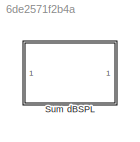
MODEL slx_6de2571f2b4a
KIND library
CONFIG AbsTol = auto
CONFIG EnableMultiTasking = off
CONFIG FixedStep = auto
CONFIG MaxStep = auto
CONFIG MinStep = auto
CONFIG RelTol = 1e-3
CONFIG SampleTimeConstraint = Unconstrained
CONFIG SolverName = VariableStepAuto
CONFIG StartTime = 0.0
CONFIG StopTime = 10.0
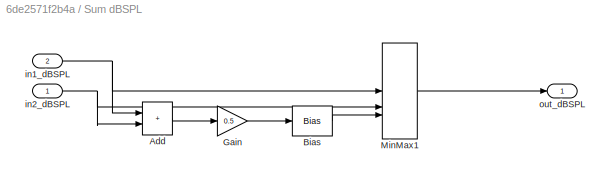
BLOCK [SubSystem] Sum dBSPL
  NameLocation = top
BLOCK [Sum] Sum dBSPL/Add
  IconShape = rectangular
BLOCK [Bias] Sum dBSPL/Bias
  Bias = 3.7
  SaturateOnIntegerOverflow = off
BLOCK [Gain] Sum dBSPL/Gain
  Gain = 0.5
BLOCK [MinMax] Sum dBSPL/MinMax1
  Function = max
  Inputs = 3
BLOCK [Inport] Sum dBSPL/in1_dBSPL
  Port = 2
BLOCK [Inport] Sum dBSPL/in2_dBSPL
BLOCK [Outport] Sum dBSPL/out_dBSPL
LINE Sum dBSPL/Add:1 -> Sum dBSPL/Gain:1
LINE Sum dBSPL/Bias:1 -> Sum dBSPL/MinMax1:3
LINE Sum dBSPL/Gain:1 -> Sum dBSPL/Bias:1
LINE Sum dBSPL/MinMax1:1 -> Sum dBSPL/out_dBSPL:1
NET Sum dBSPL/in1_dBSPL:1 -> Sum dBSPL/Add:1, Sum dBSPL/MinMax1:1
NET Sum dBSPL/in2_dBSPL:1 -> Sum dBSPL/Add:2, Sum dBSPL/MinMax1:2
note: NET lines group one-source signal fan-out (src -> all destinations, sorted); 1:1 wires keep LINE
